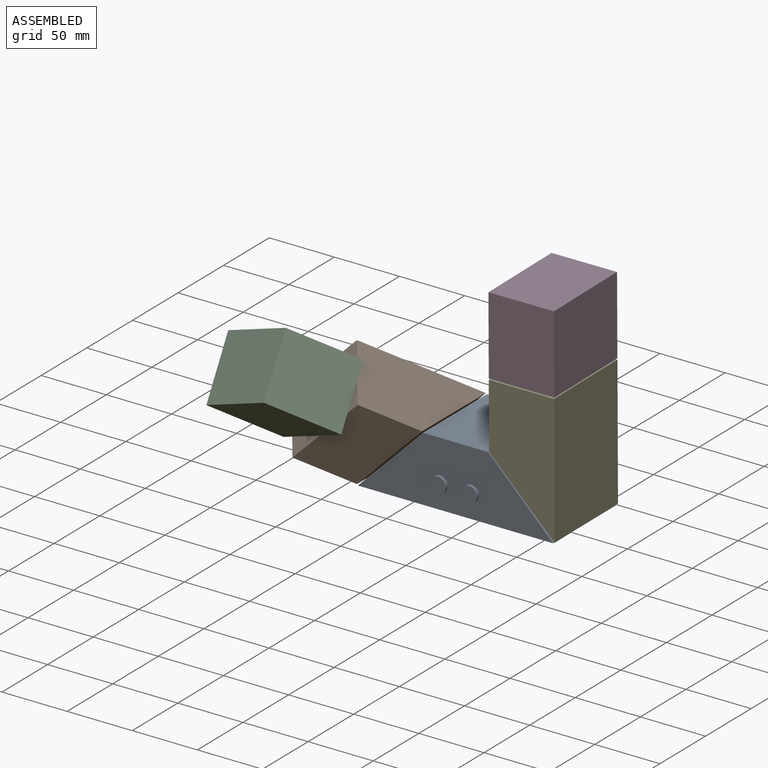
[diagram: assembled view]
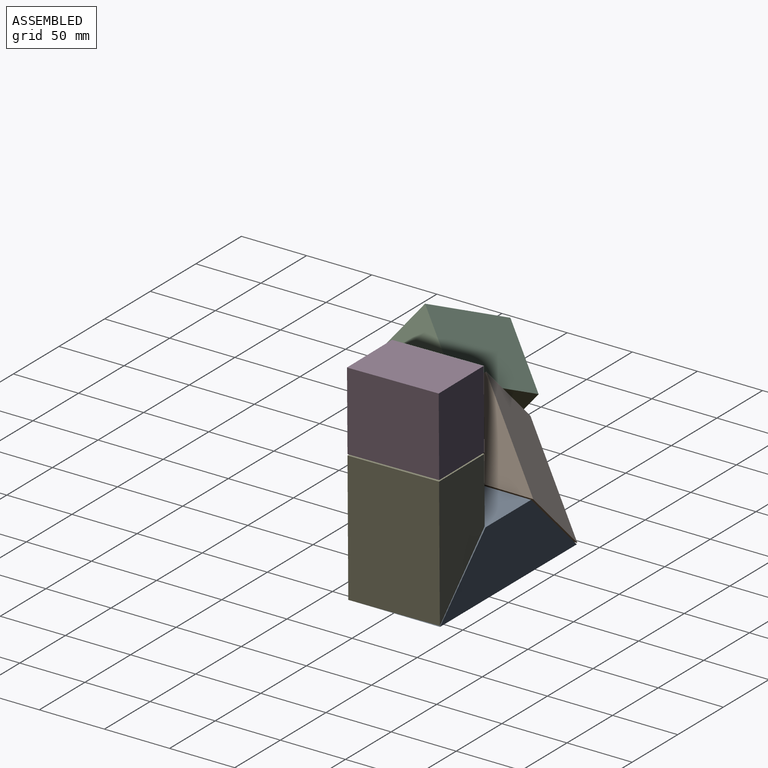
[diagram: assembled view, second angle]
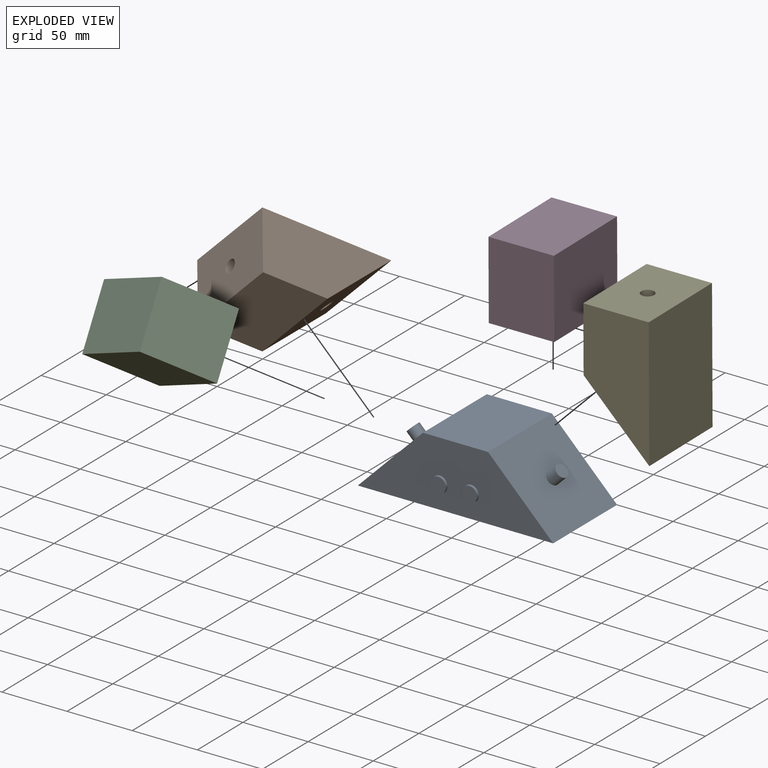
[diagram: exploded view]
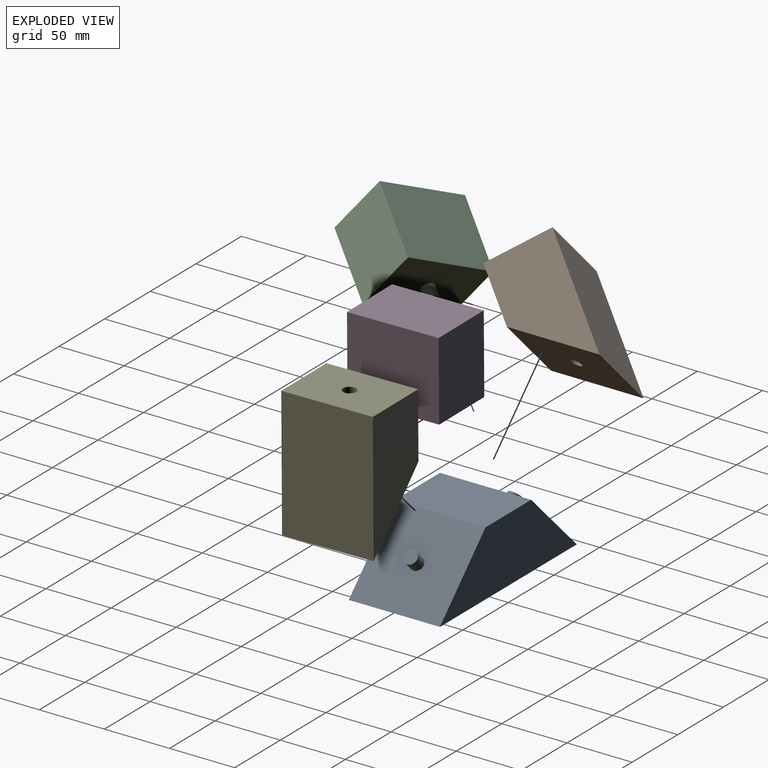
[diagram: exploded view, second angle]
ASSEMBLY  parts=5 mates=4
PART A: 14 faces, bbox 150x72x50 mm
  f0: plane 70x50mm, normal (-0.71,0,0.71), area 4871.2mm2, adj f1,f3,f4,f5,f8
  f1: plane 150x70mm, normal (0,0,-1), area 10500mm2, adj f0,f2,f4,f5
  f2: plane 70x50mm, normal (0.71,0,0.71), area 4871.2mm2, adj f1,f3,f4,f5,f6
  f3: plane 70x50mm, normal (0,0,1), area 3500mm2, adj f0,f2,f4,f5
  f4: plane 150x50mm, normal (0,-1,0), area 4779.2mm2, adj f0,f1,f2,f3,f10,f12
  f5: plane 150x50mm, normal (0,1,0), area 5000mm2, adj f0,f1,f2,f3
  f6: cylinder r=5mm len=14.14mm, axis (-0.71,0,-0.71), area 314.2mm2, adj f2,f7
  f7: plane 10x7.07mm, normal (0.71,0,0.71), area 78.5mm2, adj f6
  f8: cylinder r=5mm len=14.14mm, axis (0.71,0,-0.71), area 314.2mm2, adj f0,f9
  f9: plane 10x7.07mm, normal (-0.71,0,0.71), area 78.5mm2, adj f8
  f10: cylinder r=5.93mm len=11.86mm, axis (0,1,0), area 74.5mm2, adj f4,f11
  f11: plane 11.86x11.86mm, normal (0,-1,0), area 110.4mm2, adj f10
  f12: cylinder r=5.93mm len=11.86mm, axis (0,1,0), area 74.5mm2, adj f4,f13
  f13: plane 11.86x11.86mm, normal (0,-1,0), area 110.4mm2, adj f12
PART B: 10 faces, bbox 100x70x50 mm
  f0: plane 70x50mm, normal (-0.71,0,-0.71), area 4871.2mm2, adj f1,f3,f4,f5,f6
  f1: plane 70x50mm, normal (0,0,-1), area 3500mm2, adj f0,f2,f4,f5
  f2: plane 70x50mm, normal (1,0,0), area 3421.5mm2, adj f1,f3,f4,f5,f8
  f3: plane 100x70mm, normal (0,0,1), area 7000mm2, adj f0,f2,f4,f5
  f4: plane 100x50mm, normal (0,-1,0), area 3750mm2, adj f0,f1,f2,f3
  f5: plane 100x50mm, normal (0,1,0), area 3750mm2, adj f0,f1,f2,f3
  f6: cylinder r=5mm len=12.73mm, axis (-0.71,0,-0.71), area 251.3mm2, adj f0,f7
  f7: plane 10x7.07mm, normal (-0.71,0,-0.71), area 78.5mm2, adj f6
  f8: cylinder r=5mm len=10mm, axis (1,0,0), area 251.3mm2, adj f2,f9
  f9: plane 10x10mm, normal (1,0,0), area 78.5mm2, adj f8
PART C: 8 faces, bbox 70x70x50 mm
  f0: plane 70x60mm, normal (0,0,1), area 4200mm2, adj f1,f3,f4,f5
  f1: plane 70x50mm, normal (-1,0,0), area 3500mm2, adj f0,f2,f4,f5
  f2: plane 70x60mm, normal (0,0,-1), area 4200mm2, adj f1,f3,f4,f5
  f3: plane 70x50mm, normal (1,0,0), area 3421.5mm2, adj f0,f2,f4,f5,f6
  f4: plane 60x50mm, normal (0,-1,0), area 3000mm2, adj f0,f1,f2,f3
  f5: plane 60x50mm, normal (0,1,0), area 3000mm2, adj f0,f1,f2,f3
  f6: cylinder r=5mm len=10mm, axis (-1,0,0), area 314.2mm2, adj f3,f7
  f7: plane 10x10mm, normal (1,0,0), area 78.5mm2, adj f6
PART D: same geometry as C
PART E: same geometry as B
PLACE A t=(-162.01,6.58,112.06)mm fixed
PLACE B rot(axis=(0,-0.58,-0.81),119.6deg) t=(-212.43,-28.77,113.05)mm
PLACE C rot(axis=(0.85,0.51,-0.13),143.7deg) t=(-265.12,-68.37,166.37)mm
PLACE D rot(axis=(0.71,0.01,-0.71),179.9deg) t=(-111.3,5.92,218.77)mm
PLACE E rot(axis=(-0.71,0,-0.71),179.5deg) t=(-136.3,6.27,137.77)mm
MATE revolute C.f6 <-> B.f8  axis (-0.49,-0.71,0.51) through (-247.82,-43.62,148.67)mm
MATE revolute E.f8 <-> D.f6  axis (0,-0.01,1) through (-111.3,6.14,183.77)mm
MATE revolute A.f8 <-> B.f6  axis (0.71,0,-0.71) through (-215.54,6.58,115.6)mm
MATE revolute A.f6 <-> E.f6  axis (-0.71,0,-0.71) through (-108.47,6.58,115.6)mm
